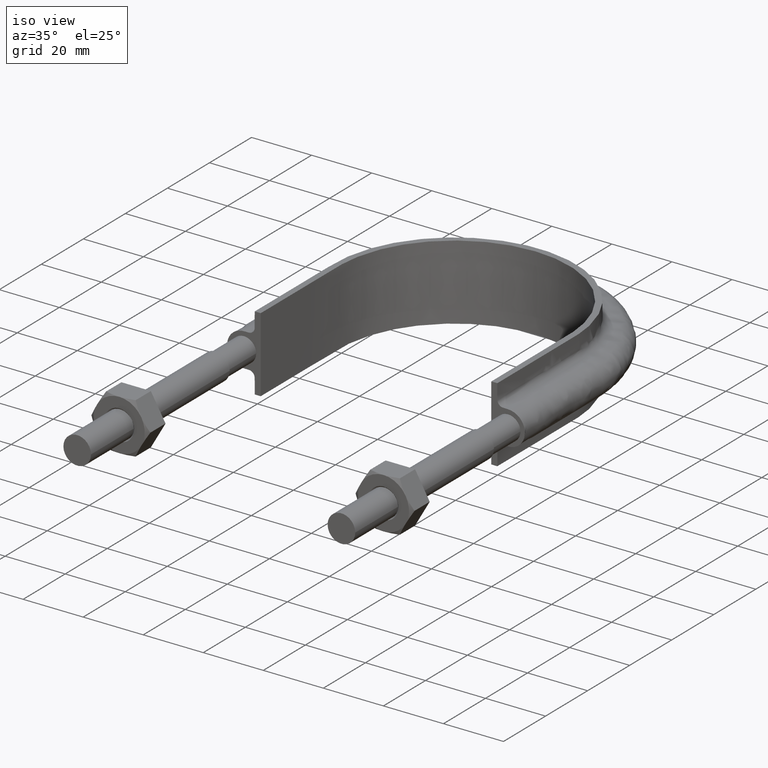
[diagram: clean part render]
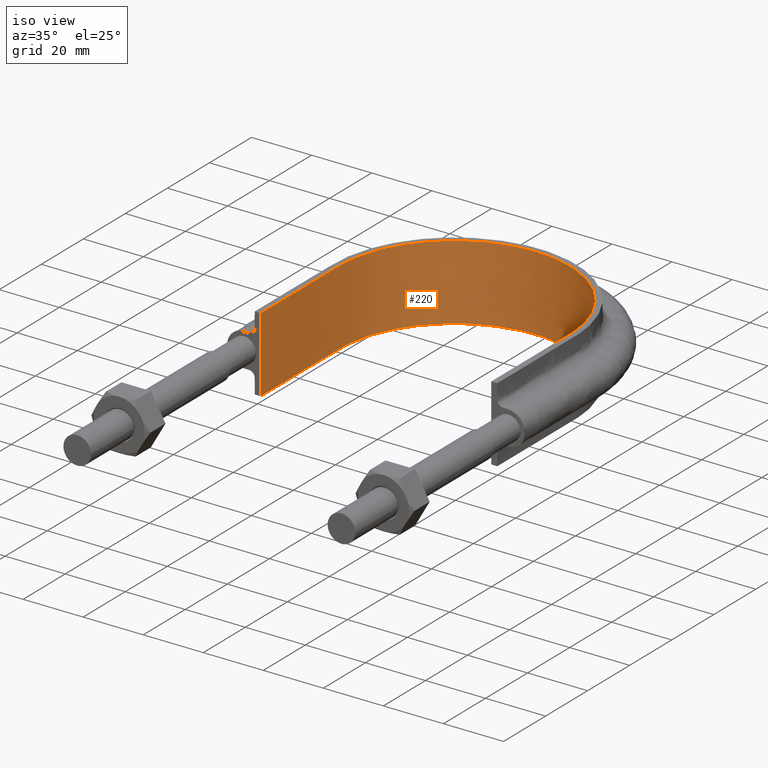
[diagram: same view with one face highlighted and labeled with its STEP entity id]
A machine part, iso view. The second image highlights one B-rep face of the part: STEP entity #220.
In plain terms, the highlighted face is a SurfaceOfExtrusion surface.
Its self-contained STEP definition (entity closure, byte-faithful):
#220 = ADVANCED_FACE( '', ( #297 ), #298, .T. );
#297 = FACE_OUTER_BOUND( '', #464, .T. );
#298 = SURFACE_OF_LINEAR_EXTRUSION( '', #465, #466 );
#464 = EDGE_LOOP( '', ( #1312, #1313, #1314, #1315 ) );
#465 = B_SPLINE_CURVE_WITH_KNOTS( '', 3, ( #1316, #1317, #1318, #1319, #1320, #1321, #1322, #1323, #1324, #1325, #1326, #1327, #1328, #1329, #1330, #1331, #1332 ), .UNSPECIFIED., .F., .F., ( 4, 3, 1, 1, 1, 1, 1, 1, 1, 3, 4 ), ( -7.93017456359102, -7.00000000000000, -6.50000000000000, -6.00000000000000, -5.00000000000000, -4.00000000000000, -3.00000000000000, -2.00000000000000, -1.50000000000000, -1.00000000000000, -0.0698254364089773 ), .UNSPECIFIED. );
#466 = VECTOR( '', #1333, 1000.00000000000 );
#1312 = ORIENTED_EDGE( '', *, *, #1839, .T. );
#1313 = ORIENTED_EDGE( '', *, *, #1843, .T. );
#1314 = ORIENTED_EDGE( '', *, *, #1844, .F. );
#1315 = ORIENTED_EDGE( '', *, *, #1845, .T. );
#1316 = CARTESIAN_POINT( '', ( 38.4000000000000, 79.3000000000000, 12.5000100000909 ) );
#1317 = CARTESIAN_POINT( '', ( 38.4000000000000, 91.7333333333333, 12.5000100000909 ) );
#1318 = CARTESIAN_POINT( '', ( 38.4000000000000, 104.166666666667, 12.5000100000909 ) );
#1319 = CARTESIAN_POINT( '', ( 38.4000000000000, 116.600000000000, 12.5000100000909 ) );
#1320 = CARTESIAN_POINT( '', ( 38.4000000000000, 119.937896038243, 12.5000100000909 ) );
#1321 = CARTESIAN_POINT( '', ( 37.5004323173849, 126.653498701236, 12.5000100000909 ) );
#1322 = CARTESIAN_POINT( '', ( 32.3590360537293, 139.146842750795, 12.5000100000909 ) );
#1323 = CARTESIAN_POINT( '', ( 20.0971465093487, 151.410921736661, 12.5000100000909 ) );
#1324 = CARTESIAN_POINT( '', ( 3.30789466943439E-014, 156.794539131670, 12.5000100000909 ) );
#1325 = CARTESIAN_POINT( '', ( -20.0971465093486, 151.410921736661, 12.5000100000909 ) );
#1326 = CARTESIAN_POINT( '', ( -32.3590360537293, 139.146842750795, 12.5000100000909 ) );
#1327 = CARTESIAN_POINT( '', ( -37.5004323173848, 126.653498701236, 12.5000100000909 ) );
#1328 = CARTESIAN_POINT( '', ( -38.4000000000000, 119.937896038243, 12.5000100000909 ) );
#1329 = CARTESIAN_POINT( '', ( -38.4000000000000, 116.600000000000, 12.5000100000909 ) );
#1330 = CARTESIAN_POINT( '', ( -38.4000000000000, 104.166666666667, 12.5000100000909 ) );
#1331 = CARTESIAN_POINT( '', ( -38.4000000000000, 91.7333333333333, 12.5000100000909 ) );
#1332 = CARTESIAN_POINT( '', ( -38.4000000000000, 79.3000000000000, 12.5000100000909 ) );
#1333 = DIRECTION( '', ( 0.000000000000000, 0.000000000000000, -1.00000000000000 ) );
#1839 = EDGE_CURVE( '', #1989, #1990, #1991, .T. );
#1843 = EDGE_CURVE( '', #1990, #1997, #1998, .F. );
#1844 = EDGE_CURVE( '', #1999, #1997, #2000, .T. );
#1845 = EDGE_CURVE( '', #1999, #1989, #2001, .T. );
#1989 = VERTEX_POINT( '', #2235 );
#1990 = VERTEX_POINT( '', #2236 );
#1991 = LINE( '', #2237, #2238 );
#1997 = VERTEX_POINT( '', #2276 );
#1998 = B_SPLINE_CURVE_WITH_KNOTS( '', 3, ( #2277, #2278, #2279, #2280, #2281, #2282, #2283, #2284, #2285, #2286, #2287, #2288, #2289, #2290, #2291, #2292, #2293 ), .UNSPECIFIED., .F., .F., ( 4, 3, 1, 1, 1, 1, 1, 1, 1, 3, 4 ), ( -7.93017456359102, -7.00000000000000, -6.50000000000000, -6.00000000000000, -5.00000000000000, -4.00000000000000, -3.00000000000000, -2.00000000000000, -1.50000000000000, -1.00000000000000, -0.0698254364089773 ), .UNSPECIFIED. );
#1999 = VERTEX_POINT( '', #2294 );
#2000 = LINE( '', #2295, #2296 );
#2001 = B_SPLINE_CURVE_WITH_KNOTS( '', 3, ( #2297, #2298, #2299, #2300, #2301, #2302, #2303, #2304, #2305, #2306, #2307, #2308, #2309, #2310, #2311, #2312, #2313, #2314, #2315, #2316, #2317, #2318, #2319, #2320, #2321, #2322, #2323, #2324, #2325, #2326, #2327, #2328, #2329, #2330, #2331, #2332, #2333, #2334, #2335, #2336, #2337, #2338, #2339, #2340, #2341, #2342, #2343, #2344, #2345, #2346, #2347, #2348, #2349, #2350, #2351, #2352, #2353, #2354, #2355, #2356, #2357, #2358, #2359, #2360, #2361, #2362, #2363, #2364, #2365, #2366, #2367, #2368, #2369, #2370, #2371, #2372, #2373, #2374, #2375, #2376, #2377, #2378, #2379, #2380, #2381, #2382 ), .UNSPECIFIED., .F., .F., ( 4, 1, 2, 2, 2, 2, 2, 2, 2, 2, 2, 2, 2, 2, 2, 2, 2, 2, 2, 2, 2, 2, 2, 2, 2, 2, 2, 2, 2, 2, 2, 2, 2, 2, 2, 2, 2, 2, 2, 2, 2, 2, 1, 4 ), ( 0.000000000000000, 0.0243379018108088, 0.0365068527162132, 0.0380279715793887, 0.0395490904425643, 0.0425913281689154, 0.0456335658952665, 0.0486758036216176, 0.0547602790743198, 0.0578025168006710, 0.0593236356638465, 0.0608447545270221, 0.0669292299797247, 0.0699714677060759, 0.0714925865692515, 0.0730137054324272, 0.0790981808851297, 0.0851826563378323, 0.0867037752010079, 0.0882248940641836, 0.0912671317905349, 0.0973516072432375, 0.0988727261064131, 0.100393844969589, 0.103436082695940, 0.109520558148643, 0.112562795874994, 0.115605033601345, 0.121689509054048, 0.123210627917223, 0.124731746780399, 0.127773984506750, 0.133858459959453, 0.136900697685804, 0.139942935412156, 0.146027410864858, 0.149069648591210, 0.150590767454385, 0.152111886317561, 0.155154124043912, 0.156675242907088, 0.158196361770264, 0.170365312675669, 0.194703214486479 ), .UNSPECIFIED. );
#2235 = CARTESIAN_POINT( '', ( -38.4000000000000, 79.3000000000000, 12.5000000000000 ) );
#2236 = CARTESIAN_POINT( '', ( -38.4000000000000, 79.3000000000000, -12.5000000000000 ) );
#2237 = CARTESIAN_POINT( '', ( -38.4000000000000, 79.3000000000000, 12.5000100000909 ) );
#2238 = VECTOR( '', #2878, 1000.00000000000 );
#2276 = CARTESIAN_POINT( '', ( 38.4000000000000, 79.3000000000000, -12.5000000000000 ) );
#2277 = CARTESIAN_POINT( '', ( 38.4000000000000, 79.3000000000000, -12.5000000000000 ) );
#2278 = CARTESIAN_POINT( '', ( 38.4000000000000, 91.7333333333333, -12.5000000000000 ) );
#2279 = CARTESIAN_POINT( '', ( 38.4000000000000, 104.166666666667, -12.5000000000000 ) );
#2280 = CARTESIAN_POINT( '', ( 38.4000000000000, 116.600000000000, -12.5000000000000 ) );
#2281 = CARTESIAN_POINT( '', ( 38.4000000000000, 119.937896038243, -12.5000000000000 ) );
#2282 = CARTESIAN_POINT( '', ( 37.5004323173849, 126.653498701236, -12.5000000000000 ) );
#2283 = CARTESIAN_POINT( '', ( 32.3590360537293, 139.146842750795, -12.5000000000000 ) );
#2284 = CARTESIAN_POINT( '', ( 20.0971465093487, 151.410921736661, -12.5000000000000 ) );
#2285 = CARTESIAN_POINT( '', ( 3.30789466943439E-014, 156.794539131670, -12.5000000000000 ) );
#2286 = CARTESIAN_POINT( '', ( -20.0971465093486, 151.410921736661, -12.5000000000000 ) );
#2287 = CARTESIAN_POINT( '', ( -32.3590360537293, 139.146842750795, -12.5000000000000 ) );
#2288 = CARTESIAN_POINT( '', ( -37.5004323173848, 126.653498701236, -12.5000000000000 ) );
#2289 = CARTESIAN_POINT( '', ( -38.4000000000000, 119.937896038243, -12.5000000000000 ) );
#2290 = CARTESIAN_POINT( '', ( -38.4000000000000, 116.600000000000, -12.5000000000000 ) );
#2291 = CARTESIAN_POINT( '', ( -38.4000000000000, 104.166666666667, -12.5000000000000 ) );
#2292 = CARTESIAN_POINT( '', ( -38.4000000000000, 91.7333333333333, -12.5000000000000 ) );
#2293 = CARTESIAN_POINT( '', ( -38.4000000000000, 79.3000000000000, -12.5000000000000 ) );
#2294 = CARTESIAN_POINT( '', ( 38.4000000000000, 79.3000000000000, 12.5000000000000 ) );
#2295 = CARTESIAN_POINT( '', ( 38.4000000000000, 79.3000000000000, 12.5000100000909 ) );
#2296 = VECTOR( '', #2881, 1000.00000000000 );
#2297 = CARTESIAN_POINT( '', ( 38.4000000000000, 79.3000000000000, 12.5000000000000 ) );
#2298 = CARTESIAN_POINT( '', ( 38.4000000000000, 87.4126339369366, 12.5000000000000 ) );
#2299 = CARTESIAN_POINT( '', ( 38.4000000000000, 99.5815848423416, 12.5000000000000 ) );
#2300 = CARTESIAN_POINT( '', ( 38.4000000000000, 111.750535747747, 12.5000000000000 ) );
#2301 = CARTESIAN_POINT( '', ( 38.4000000000000, 116.313892337273, 12.5000000000000 ) );
#2302 = CARTESIAN_POINT( '', ( 38.4027743076037, 116.821119409890, 12.5000000000000 ) );
#2303 = CARTESIAN_POINT( '', ( 38.3830167791574, 117.833863695679, 12.5000000000000 ) );
#2304 = CARTESIAN_POINT( '', ( 38.3628782069929, 118.339542614440, 12.5000000000000 ) );
#2305 = CARTESIAN_POINT( '', ( 38.2722040230530, 119.854534897765, 12.5000000000000 ) );
#2306 = CARTESIAN_POINT( '', ( 38.1714849409614, 120.861808856702, 12.5000000000000 ) );
#2307 = CARTESIAN_POINT( '', ( 37.8904277266656, 122.870977156620, 12.5000000000000 ) );
#2308 = CARTESIAN_POINT( '', ( 37.7100929165159, 123.872871722061, 12.5000000000000 ) );
#2309 = CARTESIAN_POINT( '', ( 37.2682777085645, 125.871178091473, 12.5000000000000 ) );
#2310 = CARTESIAN_POINT( '', ( 37.0058649207665, 126.869209598004, 12.5000000000000 ) );
#2311 = CARTESIAN_POINT( '', ( 36.1099085355125, 129.800428328994, 12.5000000000000 ) );
#2312 = CARTESIAN_POINT( '', ( 35.3652812283339, 131.689277860510, 12.5000000000000 ) );
#2313 = CARTESIAN_POINT( '', ( 34.0270721353677, 134.424482046523, 12.5000000000000 ) );
#2314 = CARTESIAN_POINT( '', ( 33.5438803306413, 135.319763573667, 12.5000000000000 ) );
#2315 = CARTESIAN_POINT( '', ( 32.7614856080270, 136.637153374160, 12.5000000000000 ) );
#2316 = CARTESIAN_POINT( '', ( 32.4911122498971, 137.072039439345, 12.5000000000000 ) );
#2317 = CARTESIAN_POINT( '', ( 31.9310694523165, 137.933259191099, 12.5000000000000 ) );
#2318 = CARTESIAN_POINT( '', ( 31.6416548483075, 138.359099832881, 12.5000000000000 ) );
#2319 = CARTESIAN_POINT( '', ( 30.1598500561494, 140.447972709778, 12.5000000000000 ) );
#2320 = CARTESIAN_POINT( '', ( 28.8544690281687, 142.006253780205, 12.5000000000000 ) );
#2321 = CARTESIAN_POINT( '', ( 26.7242269234557, 144.181725572989, 12.5000000000000 ) );
#2322 = CARTESIAN_POINT( '', ( 25.9852601970118, 144.879711605143, 12.5000000000000 ) );
#2323 = CARTESIAN_POINT( '', ( 24.8327554866622, 145.885251295440, 12.5000000000000 ) );
#2324 = CARTESIAN_POINT( '', ( 24.4412331318478, 146.213513644747, 12.5000000000000 ) );
#2325 = CARTESIAN_POINT( '', ( 23.6432116170532, 146.855950622699, 12.5000000000000 ) );
#2326 = CARTESIAN_POINT( '', ( 23.2357844532915, 147.170799679600, 12.5000000000000 ) );
#2327 = CARTESIAN_POINT( '', ( 21.1728995967702, 148.699717522120, 12.5000000000000 ) );
#2328 = CARTESIAN_POINT( '', ( 19.4461214786926, 149.775116348712, 12.5000000000000 ) );
#2329 = CARTESIAN_POINT( '', ( 15.8424012951629, 151.635807157406, 12.5000000000000 ) );
#2330 = CARTESIAN_POINT( '', ( 13.9663663217126, 152.422851581443, 12.5000000000000 ) );
#2331 = CARTESIAN_POINT( '', ( 11.5271708169515, 153.224762065559, 12.5000000000000 ) );
#2332 = CARTESIAN_POINT( '', ( 11.0351210878861, 153.375746188077, 12.5000000000000 ) );
#2333 = CARTESIAN_POINT( '', ( 10.0502423640910, 153.656786422983, 12.5000000000000 ) );
#2334 = CARTESIAN_POINT( '', ( 9.55637016529651, 153.787194835959, 12.5000000000000 ) );
#2335 = CARTESIAN_POINT( '', ( 8.07051418322889, 154.148502213832, 12.5000000000000 ) );
#2336 = CARTESIAN_POINT( '', ( 7.07429985999602, 154.349545743025, 12.5000000000000 ) );
#2337 = CARTESIAN_POINT( '', ( 4.06886690428308, 154.834187354575, 12.5000000000000 ) );
#2338 = CARTESIAN_POINT( '', ( 2.04300780873499, 155.000351662540, 12.5000000000000 ) );
#2339 = CARTESIAN_POINT( '', ( -0.518810472445948, 154.999911391897, 12.5000000000000 ) );
#2340 = CARTESIAN_POINT( '', ( -1.03384934041106, 154.989267949139, 12.5000000000000 ) );
#2341 = CARTESIAN_POINT( '', ( -2.05999227101008, 154.947123645522, 12.5000000000000 ) );
#2342 = CARTESIAN_POINT( '', ( -2.57100025916348, 154.915690794062, 12.5000000000000 ) );
#2343 = CARTESIAN_POINT( '', ( -4.09798525337103, 154.791070625937, 12.5000000000000 ) );
#2344 = CARTESIAN_POINT( '', ( -5.10793619044547, 154.667626472700, 12.5000000000000 ) );
#2345 = CARTESIAN_POINT( '', ( -8.11438462156117, 154.179780837089, 12.5000000000000 ) );
#2346 = CARTESIAN_POINT( '', ( -10.0876738344827, 153.698850790019, 12.5000000000000 ) );
#2347 = CARTESIAN_POINT( '', ( -13.0003199951629, 152.740024822744, 12.5000000000000 ) );
#2348 = CARTESIAN_POINT( '', ( -13.9672170977485, 152.378727202231, 12.5000000000000 ) );
#2349 = CARTESIAN_POINT( '', ( -15.8546719802244, 151.585984907772, 12.5000000000000 ) );
#2350 = CARTESIAN_POINT( '', ( -16.7774313079126, 151.154197465975, 12.5000000000000 ) );
#2351 = CARTESIAN_POINT( '', ( -19.4833402127080, 149.753490344414, 12.5000000000000 ) );
#2352 = CARTESIAN_POINT( '', ( -21.2036319794208, 148.678400373100, 12.5000000000000 ) );
#2353 = CARTESIAN_POINT( '', ( -23.2504143165321, 147.159581599005, 12.5000000000000 ) );
#2354 = CARTESIAN_POINT( '', ( -23.6545765017688, 146.847044416500, 12.5000000000000 ) );
#2355 = CARTESIAN_POINT( '', ( -24.4524162332017, 146.204260920726, 12.5000000000000 ) );
#2356 = CARTESIAN_POINT( '', ( -24.8469576925088, 145.873240647292, 12.5000000000000 ) );
#2357 = CARTESIAN_POINT( '', ( -26.0068899055367, 144.860053871450, 12.5000000000000 ) );
#2358 = CARTESIAN_POINT( '', ( -26.7486892538444, 144.158088969384, 12.5000000000000 ) );
#2359 = CARTESIAN_POINT( '', ( -28.8823748109421, 141.974991317251, 12.5000000000000 ) );
#2360 = CARTESIAN_POINT( '', ( -30.1833131714199, 140.417299289572, 12.5000000000000 ) );
#2361 = CARTESIAN_POINT( '', ( -31.9490860628639, 137.924495268019, 12.5000000000000 ) );
#2362 = CARTESIAN_POINT( '', ( -32.5065492449487, 137.067357440084, 12.5000000000000 ) );
#2363 = CARTESIAN_POINT( '', ( -33.5561706257855, 135.298108495221, 12.5000000000000 ) );
#2364 = CARTESIAN_POINT( '', ( -34.0419906193418, 134.396127879280, 12.5000000000000 ) );
#2365 = CARTESIAN_POINT( '', ( -35.3824842141312, 131.649725427965, 12.5000000000000 ) );
#2366 = CARTESIAN_POINT( '', ( -36.1236281599900, 129.761104672605, 12.5000000000000 ) );
#2367 = CARTESIAN_POINT( '', ( -37.0127103209049, 126.843968621002, 12.5000000000000 ) );
#2368 = CARTESIAN_POINT( '', ( -37.2717329928219, 125.857467876968, 12.5000000000000 ) );
#2369 = CARTESIAN_POINT( '', ( -37.6030425852180, 124.356073245167, 12.5000000000000 ) );
#2370 = CARTESIAN_POINT( '', ( -37.7041051856696, 123.850877289074, 12.5000000000000 ) );
#2371 = CARTESIAN_POINT( '', ( -37.8853786337735, 122.841026729265, 12.5000000000000 ) );
#2372 = CARTESIAN_POINT( '', ( -37.9657364586178, 122.335935616760, 12.5000000000000 ) );
#2373 = CARTESIAN_POINT( '', ( -38.1763323138402, 120.820170574568, 12.5000000000000 ) );
#2374 = CARTESIAN_POINT( '', ( -38.2761686057870, 119.809006164411, 12.5000000000000 ) );
#2375 = CARTESIAN_POINT( '', ( -38.3651025185759, 118.291278313189, 12.5000000000000 ) );
#2376 = CARTESIAN_POINT( '', ( -38.3845912942189, 117.785205181846, 12.5000000000000 ) );
#2377 = CARTESIAN_POINT( '', ( -38.4030301939459, 116.772727562863, 12.5000000000000 ) );
#2378 = CARTESIAN_POINT( '', ( -38.4000000000000, 116.266291126151, 12.5000000000000 ) );
#2379 = CARTESIAN_POINT( '', ( -38.4000000000000, 111.708803179092, 12.5000000000000 ) );
#2380 = CARTESIAN_POINT( '', ( -38.4000000000000, 99.5555019869321, 12.5000000000000 ) );
#2381 = CARTESIAN_POINT( '', ( -38.4000000000000, 87.4022007947728, 12.5000000000000 ) );
#2382 = CARTESIAN_POINT( '', ( -38.4000000000000, 79.3000000000000, 12.5000000000000 ) );
#2878 = DIRECTION( '', ( 0.000000000000000, 0.000000000000000, -1.00000000000000 ) );
#2881 = DIRECTION( '', ( 0.000000000000000, 0.000000000000000, -1.00000000000000 ) );